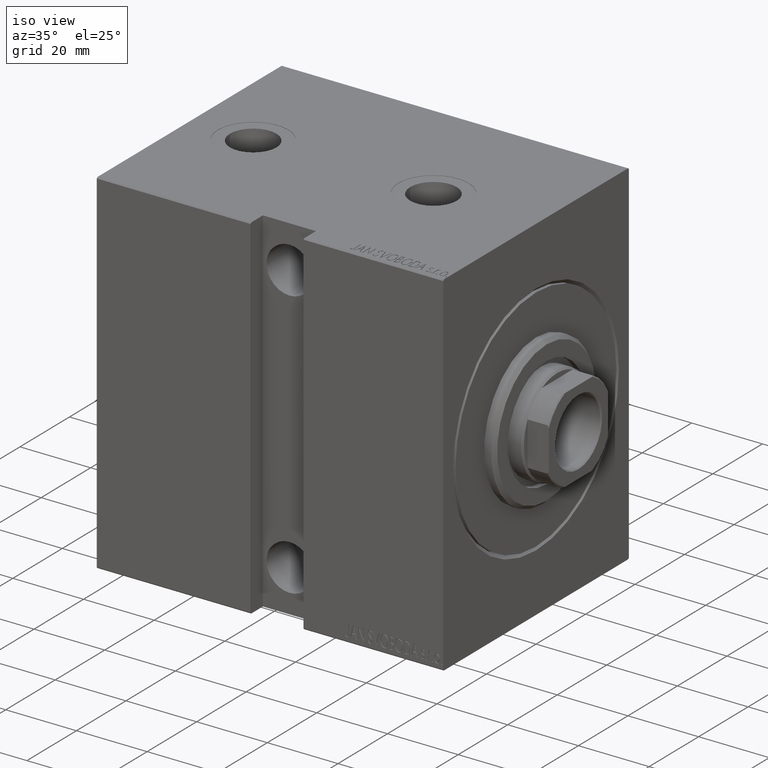
[diagram: clean part render]
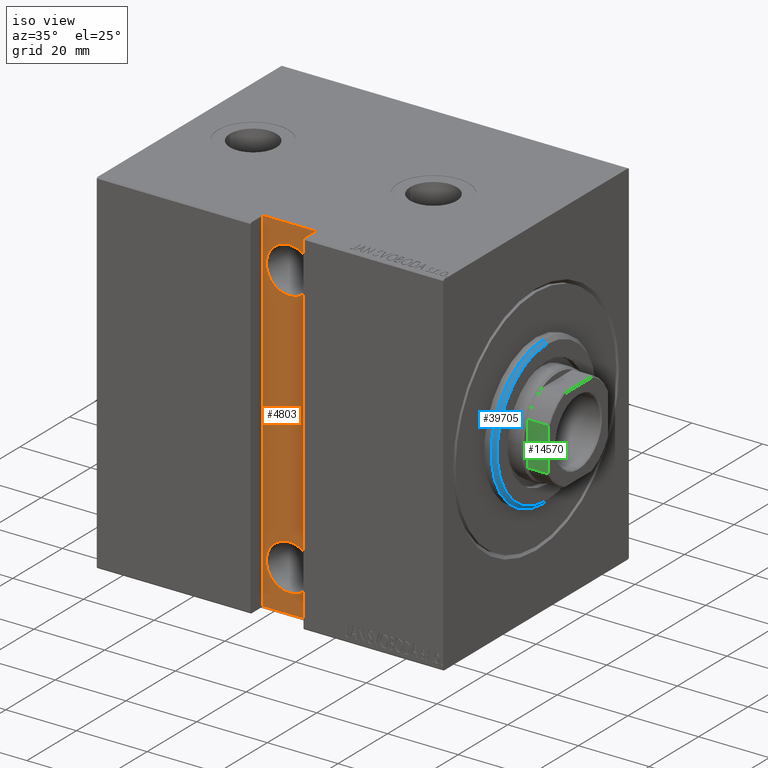
[diagram: same view with three faces highlighted in distinct colors, each labeled with its STEP entity id]
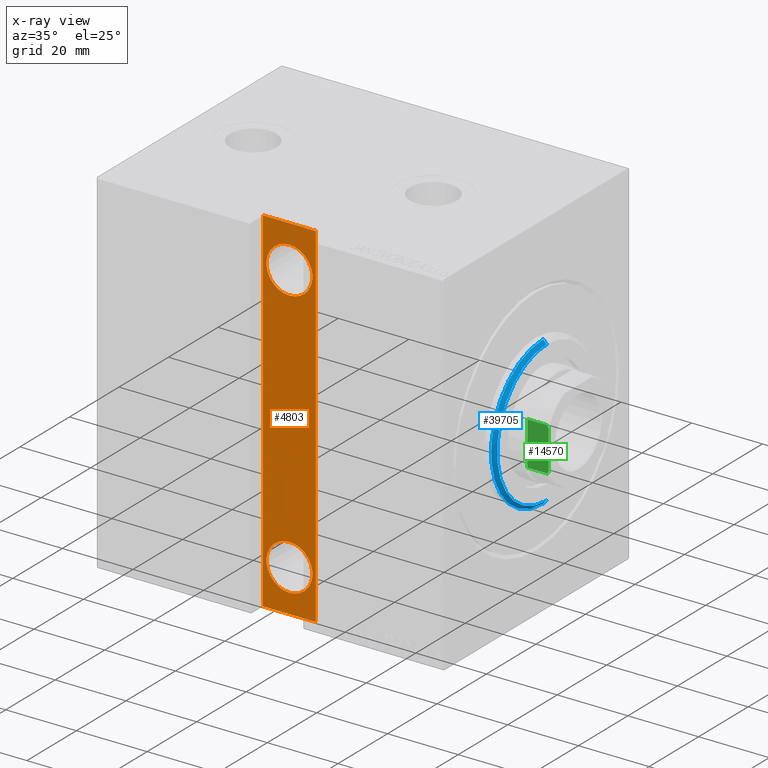
[diagram: x-ray of the same camera — body ghosted, the three highlighted faces saturated]
A machine part, iso view with three faces highlighted in distinct colors.
The next image is the same camera in x-ray (body ghosted, the three faces saturated) — at least one of them is partly hidden behind the body in this view.
Their STEP definitions:

[orange] entity #4803 — the highlighted planar face has unit normal (0, 1, 0).
#812 = AXIS2_PLACEMENT_3D ( 'NONE', #4635, #21764, #42704 ) ;
#949 = EDGE_CURVE ( 'NONE', #15403, #2723, #13398, .T. ) ;
#1085 = VERTEX_POINT ( 'NONE', #37881 ) ;
#1511 = DIRECTION ( 'NONE',  ( 0.000000000000000000, 0.000000000000000000, -1.000000000000000000 ) ) ;
#1542 = EDGE_CURVE ( 'NONE', #31823, #23497, #33519, .T. ) ;
#2473 = DIRECTION ( 'NONE',  ( 1.000000000000000000, -0.000000000000000000, -0.000000000000000000 ) ) ;
#2524 = CARTESIAN_POINT ( 'NONE',  ( 47.00000000000002132, 32.50000000000000000, 38.00000000000000000 ) ) ;
#2723 = VERTEX_POINT ( 'NONE', #22168 ) ;
#2799 = EDGE_LOOP ( 'NONE', ( #5979, #36287 ) ) ;
#3154 = DIRECTION ( 'NONE',  ( -1.000000000000000000, 0.000000000000000000, 0.000000000000000000 ) ) ;
#3957 = LINE ( 'NONE', #15061, #9173 ) ;
#4635 = CARTESIAN_POINT ( 'NONE',  ( 47.00000000000002132, 32.50000000000000000, 38.00000000000000000 ) ) ;
#4803 = ADVANCED_FACE ( 'NONE', ( #26211, #15752, #9285 ), #22861, .F. ) ;
#5819 = EDGE_CURVE ( 'NONE', #39394, #24159, #20381, .T. ) ;
#5979 = ORIENTED_EDGE ( 'NONE', *, *, #5819, .T. ) ;
#6102 = AXIS2_PLACEMENT_3D ( 'NONE', #10892, #24246, #1511 ) ;
#6618 = CARTESIAN_POINT ( 'NONE',  ( 54.50000000000000000, 32.50000000000000000, -50.00000000000000711 ) ) ;
#9173 = VECTOR ( 'NONE', #14843, 1000.000000000000000 ) ;
#9285 = FACE_OUTER_BOUND ( 'NONE', #27451, .T. ) ;
#9605 = AXIS2_PLACEMENT_3D ( 'NONE', #2524, #29690, #23219 ) ;
#9710 = ORIENTED_EDGE ( 'NONE', *, *, #37422, .T. ) ;
#10892 = CARTESIAN_POINT ( 'NONE',  ( 47.00000000000002132, 32.50000000000000000, -38.00000000000000000 ) ) ;
#12046 = EDGE_CURVE ( 'NONE', #1085, #15403, #17082, .T. ) ;
#13284 = CARTESIAN_POINT ( 'NONE',  ( 47.00000000000002132, 32.50000000000000000, 31.50000000000000000 ) ) ;
#13392 = DIRECTION ( 'NONE',  ( 0.000000000000000000, -1.000000000000000000, 0.000000000000000000 ) ) ;
#13398 = LINE ( 'NONE', #43908, #27028 ) ;
#13870 = CIRCLE ( 'NONE', #9605, 6.499999999999999112 ) ;
#14167 = VECTOR ( 'NONE', #20642, 1000.000000000000000 ) ;
#14843 = DIRECTION ( 'NONE',  ( 6.938893903907228378E-17, 0.000000000000000000, 1.000000000000000000 ) ) ;
#15061 = CARTESIAN_POINT ( 'NONE',  ( 39.50000000000000000, 32.50000000000000000, -50.00000000000000711 ) ) ;
#15403 = VERTEX_POINT ( 'NONE', #16567 ) ;
#15752 = FACE_BOUND ( 'NONE', #2799, .T. ) ;
#16066 = CARTESIAN_POINT ( 'NONE',  ( 54.50000000000001421, 32.50000000000000000, 49.99999999999999289 ) ) ;
#16567 = CARTESIAN_POINT ( 'NONE',  ( 54.50000000000001421, 32.50000000000000711, -50.00000000000000711 ) ) ;
#17080 = EDGE_CURVE ( 'NONE', #24159, #39394, #18198, .T. ) ;
#17082 = LINE ( 'NONE', #6618, #14167 ) ;
#18198 = CIRCLE ( 'NONE', #6102, 6.499999999999999112 ) ;
#18745 = LINE ( 'NONE', #16066, #25449 ) ;
#19037 = ORIENTED_EDGE ( 'NONE', *, *, #1542, .T. ) ;
#19641 = EDGE_LOOP ( 'NONE', ( #19037, #27509 ) ) ;
#20289 = CARTESIAN_POINT ( 'NONE',  ( 47.00000000000002132, 32.50000000000000000, -38.00000000000000000 ) ) ;
#20381 = CIRCLE ( 'NONE', #40261, 6.499999999999999112 ) ;
#20642 = DIRECTION ( 'NONE',  ( -1.387778780781445676E-16, -0.000000000000000000, -1.000000000000000000 ) ) ;
#20644 = ORIENTED_EDGE ( 'NONE', *, *, #12046, .T. ) ;
#21764 = DIRECTION ( 'NONE',  ( 0.000000000000000000, -1.000000000000000000, 0.000000000000000000 ) ) ;
#22076 = EDGE_CURVE ( 'NONE', #23497, #31823, #13870, .T. ) ;
#22168 = CARTESIAN_POINT ( 'NONE',  ( 39.50000000000000000, 32.50000000000000000, -50.00000000000000711 ) ) ;
#22576 = ORIENTED_EDGE ( 'NONE', *, *, #949, .T. ) ;
#22861 = PLANE ( 'NONE',  #38184 ) ;
#23219 = DIRECTION ( 'NONE',  ( 0.000000000000000000, 0.000000000000000000, -1.000000000000000000 ) ) ;
#23497 = VERTEX_POINT ( 'NONE', #13284 ) ;
#24159 = VERTEX_POINT ( 'NONE', #40542 ) ;
#24246 = DIRECTION ( 'NONE',  ( 0.000000000000000000, -1.000000000000000000, 0.000000000000000000 ) ) ;
#25330 = CARTESIAN_POINT ( 'NONE',  ( 0.000000000000000000, 32.50000000000000000, 0.000000000000000000 ) ) ;
#25449 = VECTOR ( 'NONE', #2473, 1000.000000000000000 ) ;
#26211 = FACE_BOUND ( 'NONE', #19641, .T. ) ;
#27028 = VECTOR ( 'NONE', #3154, 1000.000000000000000 ) ;
#27451 = EDGE_LOOP ( 'NONE', ( #9710, #35086, #20644, #22576 ) ) ;
#27509 = ORIENTED_EDGE ( 'NONE', *, *, #22076, .T. ) ;
#28470 = CARTESIAN_POINT ( 'NONE',  ( 39.50000000000000711, 32.50000000000000000, 49.99999999999999289 ) ) ;
#29690 = DIRECTION ( 'NONE',  ( 0.000000000000000000, -1.000000000000000000, 0.000000000000000000 ) ) ;
#30631 = CARTESIAN_POINT ( 'NONE',  ( 47.00000000000002132, 32.50000000000000000, -31.50000000000000000 ) ) ;
#31823 = VERTEX_POINT ( 'NONE', #43271 ) ;
#32893 = DIRECTION ( 'NONE',  ( 0.000000000000000000, -0.000000000000000000, -1.000000000000000000 ) ) ;
#33442 = DIRECTION ( 'NONE',  ( 0.000000000000000000, 0.000000000000000000, -1.000000000000000000 ) ) ;
#33519 = CIRCLE ( 'NONE', #812, 6.499999999999999112 ) ;
#35086 = ORIENTED_EDGE ( 'NONE', *, *, #38702, .T. ) ;
#35792 = DIRECTION ( 'NONE',  ( 0.000000000000000000, -1.000000000000000000, 0.000000000000000000 ) ) ;
#36187 = VERTEX_POINT ( 'NONE', #28470 ) ;
#36287 = ORIENTED_EDGE ( 'NONE', *, *, #17080, .T. ) ;
#37422 = EDGE_CURVE ( 'NONE', #2723, #36187, #3957, .T. ) ;
#37881 = CARTESIAN_POINT ( 'NONE',  ( 54.50000000000001421, 32.50000000000000000, 49.99999999999999289 ) ) ;
#38184 = AXIS2_PLACEMENT_3D ( 'NONE', #25330, #35792, #32893 ) ;
#38702 = EDGE_CURVE ( 'NONE', #36187, #1085, #18745, .T. ) ;
#39394 = VERTEX_POINT ( 'NONE', #30631 ) ;
#40261 = AXIS2_PLACEMENT_3D ( 'NONE', #20289, #13392, #33442 ) ;
#40542 = CARTESIAN_POINT ( 'NONE',  ( 47.00000000000002132, 32.50000000000000000, -44.50000000000000000 ) ) ;
#42704 = DIRECTION ( 'NONE',  ( 0.000000000000000000, 0.000000000000000000, -1.000000000000000000 ) ) ;
#43271 = CARTESIAN_POINT ( 'NONE',  ( 47.00000000000002132, 32.50000000000000000, 44.50000000000000000 ) ) ;
#43908 = CARTESIAN_POINT ( 'NONE',  ( 54.50000000000000000, 32.50000000000000000, -50.00000000000000711 ) ) ;

[blue] entity #39705 — the highlighted conical surface has half-angle 45 deg.
#1 = CONICAL_SURFACE ( 'NONE', #39834, 19.99999999999998934, 0.7853981633974517207 ) ;
#567 = ORIENTED_EDGE ( 'NONE', *, *, #28626, .F. ) ;
#4252 = DIRECTION ( 'NONE',  ( 0.000000000000000000, 0.000000000000000000, 1.000000000000000000 ) ) ;
#4934 = DIRECTION ( 'NONE',  ( -0.7071067811865451302, 0.000000000000000000, 0.7071067811865500152 ) ) ;
#5824 = ORIENTED_EDGE ( 'NONE', *, *, #13161, .F. ) ;
#7213 = CARTESIAN_POINT ( 'NONE',  ( 1.999999999999995781, 0.000000000000000000, 21.00000000000000000 ) ) ;
#8361 = VERTEX_POINT ( 'NONE', #36467 ) ;
#9919 = DIRECTION ( 'NONE',  ( -1.000000000000000000, 0.000000000000000000, 0.000000000000000000 ) ) ;
#11352 = CIRCLE ( 'NONE', #38351, 21.00000000000000000 ) ;
#13161 = EDGE_CURVE ( 'NONE', #8361, #41318, #11352, .T. ) ;
#13180 = CARTESIAN_POINT ( 'NONE',  ( 3.000000000000000000, 0.000000000000000000, 0.000000000000000000 ) ) ;
#13863 = EDGE_LOOP ( 'NONE', ( #567, #43490, #29904, #5824 ) ) ;
#15665 = EDGE_CURVE ( 'NONE', #29747, #30954, #21710, .T. ) ;
#16609 = VECTOR ( 'NONE', #4934, 1000.000000000000114 ) ;
#17480 = DIRECTION ( 'NONE',  ( 0.000000000000000000, 0.000000000000000000, -1.000000000000000000 ) ) ;
#18259 = FACE_OUTER_BOUND ( 'NONE', #13863, .T. ) ;
#21688 = CARTESIAN_POINT ( 'NONE',  ( 3.000000000000000000, 2.449293598294705330E-15, -19.99999999999998934 ) ) ;
#21710 = CIRCLE ( 'NONE', #22417, 19.99999999999998934 ) ;
#21935 = CARTESIAN_POINT ( 'NONE',  ( 3.000000000000000000, 0.000000000000000000, 19.99999999999998934 ) ) ;
#22071 = CARTESIAN_POINT ( 'NONE',  ( 3.000000000000000000, 0.000000000000000000, 19.99999999999998934 ) ) ;
#22417 = AXIS2_PLACEMENT_3D ( 'NONE', #13180, #27417, #26974 ) ;
#23937 = CARTESIAN_POINT ( 'NONE',  ( 1.999999999999995781, 0.000000000000000000, 0.000000000000000000 ) ) ;
#26974 = DIRECTION ( 'NONE',  ( 0.000000000000000000, 0.000000000000000000, -1.000000000000000000 ) ) ;
#27417 = DIRECTION ( 'NONE',  ( 1.000000000000000000, -0.000000000000000000, 0.000000000000000000 ) ) ;
#28066 = DIRECTION ( 'NONE',  ( -1.000000000000000000, 0.000000000000000000, 0.000000000000000000 ) ) ;
#28626 = EDGE_CURVE ( 'NONE', #30954, #8361, #41532, .T. ) ;
#28886 = EDGE_CURVE ( 'NONE', #29747, #41318, #35443, .T. ) ;
#29747 = VERTEX_POINT ( 'NONE', #21935 ) ;
#29904 = ORIENTED_EDGE ( 'NONE', *, *, #28886, .T. ) ;
#30954 = VERTEX_POINT ( 'NONE', #37236 ) ;
#31413 = CARTESIAN_POINT ( 'NONE',  ( 3.000000000000000000, 0.000000000000000000, 0.000000000000000000 ) ) ;
#35278 = DIRECTION ( 'NONE',  ( -0.7071067811865451302, 8.659560562354962440E-17, -0.7071067811865500152 ) ) ;
#35443 = LINE ( 'NONE', #22071, #16609 ) ;
#36467 = CARTESIAN_POINT ( 'NONE',  ( 1.999999999999995781, 2.571758278209441661E-15, -21.00000000000000000 ) ) ;
#37236 = CARTESIAN_POINT ( 'NONE',  ( 3.000000000000000000, 2.510525938252073693E-15, -19.99999999999998934 ) ) ;
#38351 = AXIS2_PLACEMENT_3D ( 'NONE', #23937, #9919, #17480 ) ;
#39705 = ADVANCED_FACE ( 'NONE', ( #18259 ), #1, .T. ) ;
#39834 = AXIS2_PLACEMENT_3D ( 'NONE', #31413, #28066, #4252 ) ;
#40757 = VECTOR ( 'NONE', #35278, 1000.000000000000114 ) ;
#41318 = VERTEX_POINT ( 'NONE', #7213 ) ;
#41532 = LINE ( 'NONE', #21688, #40757 ) ;
#43490 = ORIENTED_EDGE ( 'NONE', *, *, #15665, .F. ) ;

[green] entity #14570 — the highlighted planar face has unit normal (0, 1, 0).
#769 = LINE ( 'NONE', #21029, #3467 ) ;
#1382 = DIRECTION ( 'NONE',  ( -0.000000000000000000, -0.000000000000000000, 1.000000000000000000 ) ) ;
#1445 = B_SPLINE_CURVE_WITH_KNOTS ( 'NONE', 3,
 ( #3064, #43819, #13315, #9972 ),
 .UNSPECIFIED., .F., .F.,
 ( 4, 4 ),
 ( 0.000000000000000000, 0.0007483334419306215523 ),
 .UNSPECIFIED. ) ;
#1828 = CARTESIAN_POINT ( 'NONE',  ( 6.184658438426501093, -11.99999999999999645, 89.99999999999998579 ) ) ;
#1879 = DIRECTION ( 'NONE',  ( 0.000000000000000000, 1.000000000000000000, 0.000000000000000000 ) ) ;
#2277 = EDGE_CURVE ( 'NONE', #15922, #43620, #17134, .T. ) ;
#3064 = CARTESIAN_POINT ( 'NONE',  ( 6.184658438426501093, -11.99999999999999645, 95.69999999999998863 ) ) ;
#3329 = EDGE_CURVE ( 'NONE', #43620, #24817, #4299, .T. ) ;
#3467 = VECTOR ( 'NONE', #23924, 1000.000000000000000 ) ;
#4299 = LINE ( 'NONE', #28334, #43256 ) ;
#5528 = B_SPLINE_CURVE_WITH_KNOTS ( 'NONE', 3,
 ( #8490, #12068, #28312, #31866 ),
 .UNSPECIFIED., .F., .F.,
 ( 4, 4 ),
 ( 0.000000000000000000, 0.0007483334419305857736 ),
 .UNSPECIFIED. ) ;
#5784 = ORIENTED_EDGE ( 'NONE', *, *, #7972, .T. ) ;
#6204 = ORIENTED_EDGE ( 'NONE', *, *, #37357, .T. ) ;
#7265 = ORIENTED_EDGE ( 'NONE', *, *, #7636, .F. ) ;
#7434 = LINE ( 'NONE', #7651, #8791 ) ;
#7636 = EDGE_CURVE ( 'NONE', #15922, #15441, #769, .T. ) ;
#7651 = CARTESIAN_POINT ( 'NONE',  ( -11.99999999999999822, -12.00000000000000355, 96.00000000000000000 ) ) ;
#7972 = EDGE_CURVE ( 'NONE', #11933, #15441, #5528, .T. ) ;
#8490 = CARTESIAN_POINT ( 'NONE',  ( -5.499090833947052559, -12.00000000000000355, 96.00000000000000000 ) ) ;
#8791 = VECTOR ( 'NONE', #21234, 1000.000000000000000 ) ;
#9972 = CARTESIAN_POINT ( 'NONE',  ( 5.499090833947025914, -12.00000000000000355, 96.00000000000000000 ) ) ;
#10703 = VECTOR ( 'NONE', #10902, 1000.000000000000000 ) ;
#10902 = DIRECTION ( 'NONE',  ( 1.000000000000000000, 0.000000000000000000, 0.000000000000000000 ) ) ;
#11080 = ORIENTED_EDGE ( 'NONE', *, *, #2277, .T. ) ;
#11654 = CARTESIAN_POINT ( 'NONE',  ( -6.184658438426501093, -11.99999999999999645, 95.70000000000001705 ) ) ;
#11933 = VERTEX_POINT ( 'NONE', #14449 ) ;
#12068 = CARTESIAN_POINT ( 'NONE',  ( -5.729389212963472033, -12.00000000000000355, 95.90405820415742255 ) ) ;
#12362 = DIRECTION ( 'NONE',  ( 0.000000000000000000, -0.000000000000000000, 1.000000000000000000 ) ) ;
#13315 = CARTESIAN_POINT ( 'NONE',  ( 5.729389212963454270, -12.00000000000000355, 95.90405820415740834 ) ) ;
#14449 = CARTESIAN_POINT ( 'NONE',  ( -5.499090833947052559, -12.00000000000000355, 96.00000000000000000 ) ) ;
#14570 = ADVANCED_FACE ( 'NONE', ( #18583 ), #29699, .F. ) ;
#15441 = VERTEX_POINT ( 'NONE', #11654 ) ;
#15552 = CARTESIAN_POINT ( 'NONE',  ( 5.499090833947025914, -12.00000000000000355, 96.00000000000000000 ) ) ;
#15782 = ORIENTED_EDGE ( 'NONE', *, *, #24612, .F. ) ;
#15922 = VERTEX_POINT ( 'NONE', #24900 ) ;
#17134 = LINE ( 'NONE', #27376, #10703 ) ;
#18583 = FACE_OUTER_BOUND ( 'NONE', #35994, .T. ) ;
#21029 = CARTESIAN_POINT ( 'NONE',  ( -6.184658438426501093, -11.99999999999999645, -0.001000000000001000089 ) ) ;
#21234 = DIRECTION ( 'NONE',  ( 1.000000000000000000, 0.000000000000000000, 0.000000000000000000 ) ) ;
#22139 = CARTESIAN_POINT ( 'NONE',  ( -11.99999999999999822, -12.00000000000000355, 96.00000000000000000 ) ) ;
#23924 = DIRECTION ( 'NONE',  ( -0.000000000000000000, -0.000000000000000000, 1.000000000000000000 ) ) ;
#24612 = EDGE_CURVE ( 'NONE', #11933, #28164, #7434, .T. ) ;
#24817 = VERTEX_POINT ( 'NONE', #43024 ) ;
#24900 = CARTESIAN_POINT ( 'NONE',  ( -6.184658438426501093, -11.99999999999999645, 89.99999999999998579 ) ) ;
#25283 = AXIS2_PLACEMENT_3D ( 'NONE', #22139, #1879, #12362 ) ;
#27376 = CARTESIAN_POINT ( 'NONE',  ( -11.99999999999999822, -12.00000000000000355, 90.00000000000000000 ) ) ;
#28164 = VERTEX_POINT ( 'NONE', #15552 ) ;
#28312 = CARTESIAN_POINT ( 'NONE',  ( -5.957846001622733034, -12.00000000000000355, 95.80390795934954440 ) ) ;
#28334 = CARTESIAN_POINT ( 'NONE',  ( 6.184658438426501093, -11.99999999999999645, -0.001000000000001000089 ) ) ;
#29525 = ORIENTED_EDGE ( 'NONE', *, *, #3329, .T. ) ;
#29699 = PLANE ( 'NONE',  #25283 ) ;
#31866 = CARTESIAN_POINT ( 'NONE',  ( -6.184658438426501093, -11.99999999999999645, 95.70000000000001705 ) ) ;
#35994 = EDGE_LOOP ( 'NONE', ( #29525, #6204, #15782, #5784, #7265, #11080 ) ) ;
#37357 = EDGE_CURVE ( 'NONE', #24817, #28164, #1445, .T. ) ;
#43024 = CARTESIAN_POINT ( 'NONE',  ( 6.184658438426501093, -11.99999999999999645, 95.69999999999998863 ) ) ;
#43256 = VECTOR ( 'NONE', #1382, 1000.000000000000000 ) ;
#43620 = VERTEX_POINT ( 'NONE', #1828 ) ;
#43819 = CARTESIAN_POINT ( 'NONE',  ( 5.957846001622724152, -11.99999999999999645, 95.80390795934953019 ) ) ;